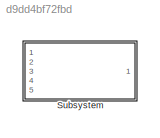
MODEL slx_d9dd4bf72fbd
KIND model
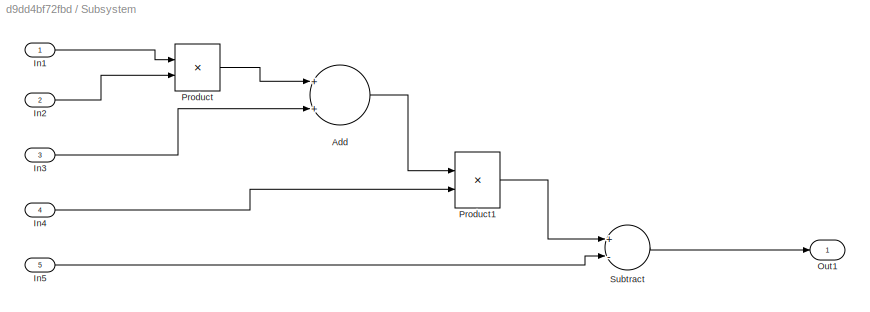
BLOCK [SubSystem] Subsystem
  Ports = [5, 1]
  RequestExecContextInheritance = off
BLOCK [Sum] Subsystem/Add
  InputSameDT = off
  OutDataTypeStr = Inherit: Inherit via internal rule
  Ports = [2, 1]
  SaturateOnIntegerOverflow = off
BLOCK [Inport] Subsystem/In1
  IconDisplay = Port number
BLOCK [Inport] Subsystem/In2
  IconDisplay = Port number
  Port = 2
BLOCK [Inport] Subsystem/In3
  IconDisplay = Port number
  Port = 3
BLOCK [Inport] Subsystem/In4
  IconDisplay = Port number
  Port = 4
BLOCK [Inport] Subsystem/In5
  IconDisplay = Port number
  Port = 5
BLOCK [Outport] Subsystem/Out1
  IconDisplay = Port number
BLOCK [Product] Subsystem/Product
  InputSameDT = off
  OutDataTypeStr = Inherit: Inherit via internal rule
  Ports = [2, 1]
  RndMeth = Floor
  SaturateOnIntegerOverflow = off
BLOCK [Product] Subsystem/Product1
  InputSameDT = off
  OutDataTypeStr = Inherit: Inherit via internal rule
  Ports = [2, 1]
  RndMeth = Floor
  SaturateOnIntegerOverflow = off
BLOCK [Sum] Subsystem/Subtract
  InputSameDT = off
  Inputs = +-
  OutDataTypeStr = Inherit: Inherit via internal rule
  Ports = [2, 1]
  SaturateOnIntegerOverflow = off
LINE Subsystem/Add:1 -> Subsystem/Product1:1
LINE Subsystem/In1:1 -> Subsystem/Product:1
LINE Subsystem/In2:1 -> Subsystem/Product:2
LINE Subsystem/In3:1 -> Subsystem/Add:2
LINE Subsystem/In4:1 -> Subsystem/Product1:2
LINE Subsystem/In5:1 -> Subsystem/Subtract:2
LINE Subsystem/Product1:1 -> Subsystem/Subtract:1
LINE Subsystem/Product:1 -> Subsystem/Add:1
LINE Subsystem/Subtract:1 -> Subsystem/Out1:1
